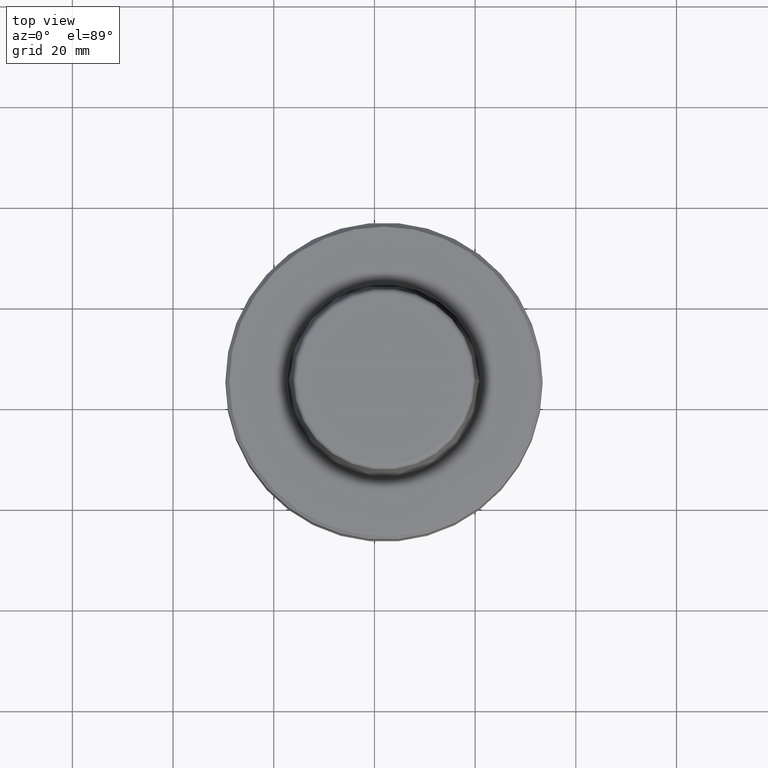
[diagram: clean part render]
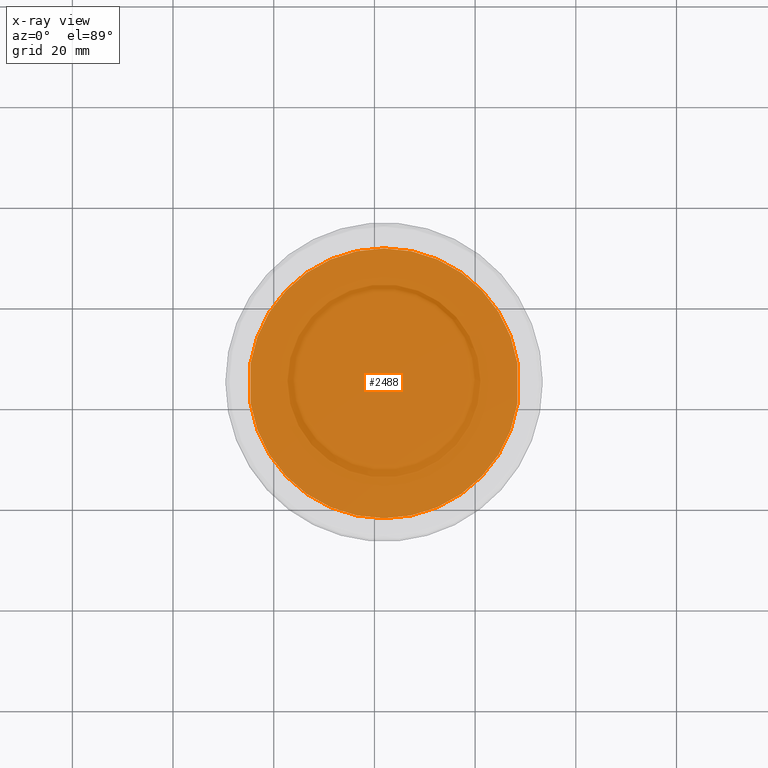
[diagram: x-ray — body ghosted, one internal face saturated and labeled with its STEP entity id]
A machine part, top view, then the same camera in x-ray: the body is ghosted and one INTERNAL B-rep face — a face not visible from any outside direction — is saturated and labeled: STEP entity #2488.
In plain terms, the highlighted planar face has unit normal (0, 0, -1).
Its self-contained STEP definition (entity closure, byte-faithful):
#34 = LINE ( 'NONE', #2296, #686 ) ;
#81 = VERTEX_POINT ( 'NONE', #1265 ) ;
#170 = EDGE_LOOP ( 'NONE', ( #1097, #2099, #448, #1290 ) ) ;
#175 = DIRECTION ( 'NONE',  ( 1.000000000000000000, 0.0000000000000000000, 0.0000000000000000000 ) ) ;
#212 = EDGE_CURVE ( 'NONE', #1730, #675, #1492, .T. ) ;
#349 = CARTESIAN_POINT ( 'NONE',  ( -24.59736664747106300, 0.06635013766866440500, 28.21820766701714300 ) ) ;
#413 = VERTEX_POINT ( 'NONE', #1343 ) ;
#448 = ORIENTED_EDGE ( 'NONE', *, *, #212, .T. ) ;
#563 = DIRECTION ( 'NONE',  ( 0.0000000000000000000, -1.000000000000000000, 0.0000000000000000000 ) ) ;
#647 = AXIS2_PLACEMENT_3D ( 'NONE', #3164, #1660, #175 ) ;
#675 = VERTEX_POINT ( 'NONE', #1254 ) ;
#681 = EDGE_CURVE ( 'NONE', #675, #81, #2308, .T. ) ;
#686 = VECTOR ( 'NONE', #563, 1000.000000000000000 ) ;
#698 = DIRECTION ( 'NONE',  ( 0.0000000000000000000, 0.0000000000000000000, -1.000000000000000000 ) ) ;
#765 = DIRECTION ( 'NONE',  ( -0.0000000000000000000, -0.0000000000000000000, 1.000000000000000000 ) ) ;
#1097 = ORIENTED_EDGE ( 'NONE', *, *, #2047, .T. ) ;
#1118 = FACE_OUTER_BOUND ( 'NONE', #170, .T. ) ;
#1254 = CARTESIAN_POINT ( 'NONE',  ( 28.40263335252893700, 0.06635013766866267000, 28.21820766701714300 ) ) ;
#1265 = CARTESIAN_POINT ( 'NONE',  ( 28.40263335252893700, 8.063849746921517800, 28.21820766701714300 ) ) ;
#1290 = ORIENTED_EDGE ( 'NONE', *, *, #681, .T. ) ;
#1343 = CARTESIAN_POINT ( 'NONE',  ( -24.59736664747106300, 8.063849746921519600, 28.21820766701714300 ) ) ;
#1492 = CIRCLE ( 'NONE', #647, 26.79999999999999700 ) ;
#1640 = VECTOR ( 'NONE', #2584, 1000.000000000000000 ) ;
#1660 = DIRECTION ( 'NONE',  ( -0.0000000000000000000, -0.0000000000000000000, 1.000000000000000000 ) ) ;
#1730 = VERTEX_POINT ( 'NONE', #349 ) ;
#1747 = CIRCLE ( 'NONE', #2519, 26.79999999999999700 ) ;
#1944 = PLANE ( 'NONE',  #2388 ) ;
#2047 = EDGE_CURVE ( 'NONE', #81, #413, #1747, .T. ) ;
#2099 = ORIENTED_EDGE ( 'NONE', *, *, #2211, .T. ) ;
#2193 = CARTESIAN_POINT ( 'NONE',  ( 1.902633352528937400, 4.065099942295091800, 28.21820766701714300 ) ) ;
#2211 = EDGE_CURVE ( 'NONE', #413, #1730, #34, .T. ) ;
#2258 = CARTESIAN_POINT ( 'NONE',  ( 1.902633352528937400, 4.065099942295091800, 28.21820766701714300 ) ) ;
#2296 = CARTESIAN_POINT ( 'NONE',  ( -24.59736664747106300, 34.59941451734585600, 28.21820766701714300 ) ) ;
#2308 = LINE ( 'NONE', #3005, #1640 ) ;
#2388 = AXIS2_PLACEMENT_3D ( 'NONE', #2193, #698, #2428 ) ;
#2428 = DIRECTION ( 'NONE',  ( -1.000000000000000000, 0.0000000000000000000, -0.0000000000000000000 ) ) ;
#2488 = ADVANCED_FACE ( 'NONE', ( #1118 ), #1944, .F. ) ;
#2494 = DIRECTION ( 'NONE',  ( 1.000000000000000000, 0.0000000000000000000, 0.0000000000000000000 ) ) ;
#2519 = AXIS2_PLACEMENT_3D ( 'NONE', #2258, #765, #2494 ) ;
#2584 = DIRECTION ( 'NONE',  ( 0.0000000000000000000, 1.000000000000000000, 0.0000000000000000000 ) ) ;
#3005 = CARTESIAN_POINT ( 'NONE',  ( 28.40263335252893700, 34.59941451734585600, 28.21820766701714300 ) ) ;
#3164 = CARTESIAN_POINT ( 'NONE',  ( 1.902633352528937400, 4.065099942295091800, 28.21820766701714300 ) ) ;